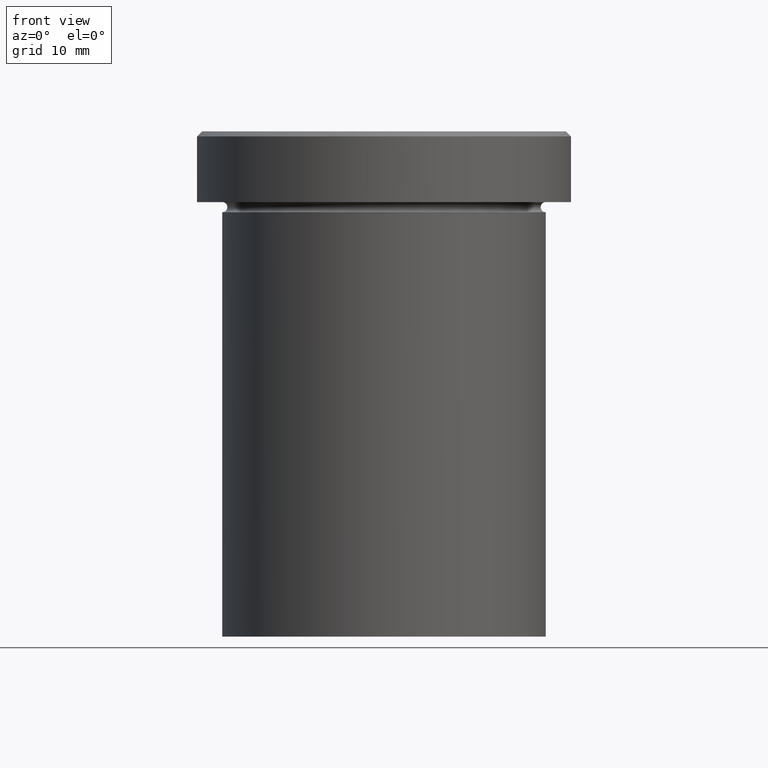
[diagram: clean part render]
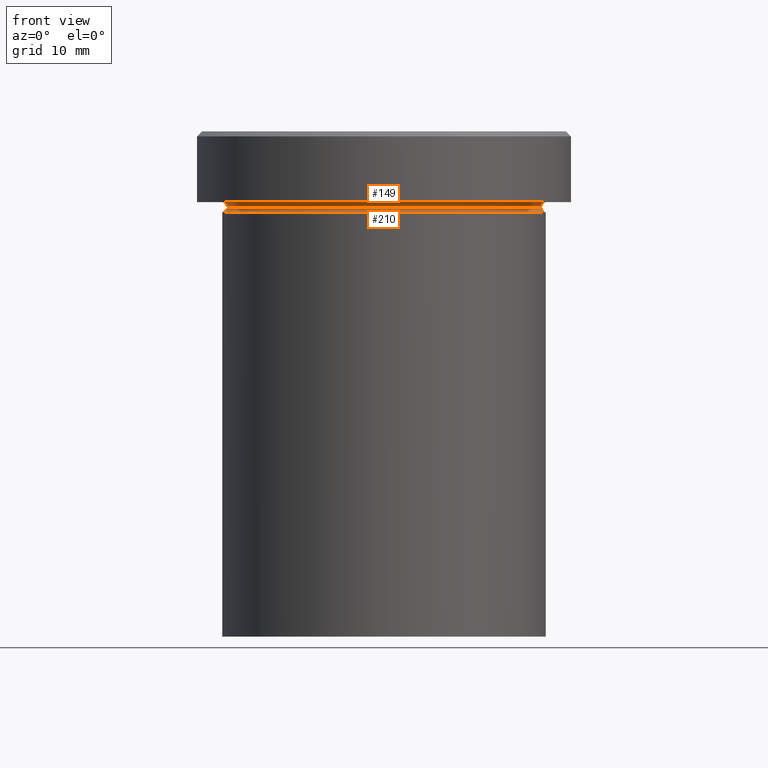
[diagram: same view with one multi-face feature highlighted, each face labeled with its STEP entity id]
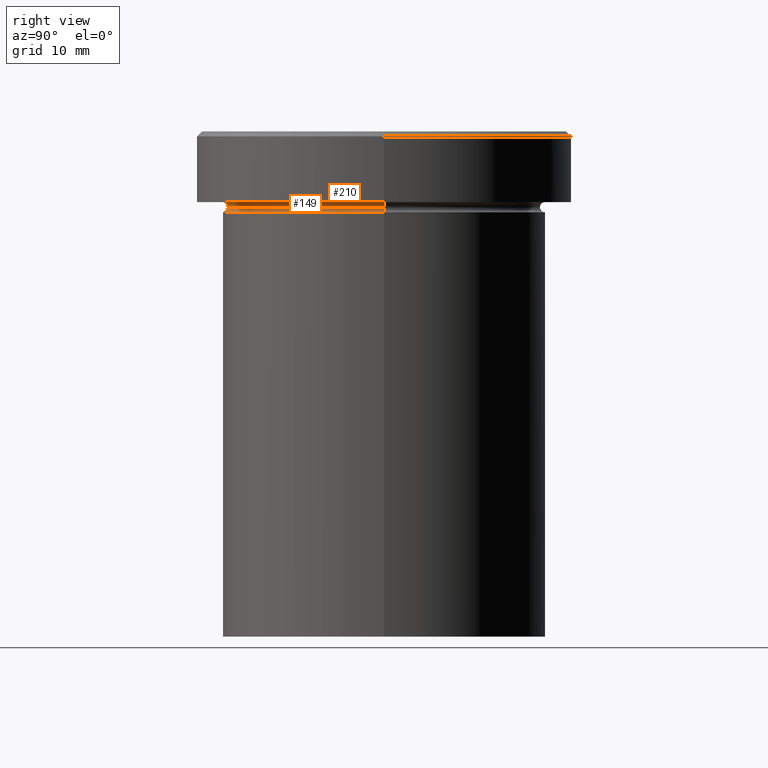
[diagram: same view with one multi-face feature highlighted, each face labeled with its STEP entity id]
A machine part, front view. The highlighted faces form ONE feature: a constant-radius fillet chain: 2 tangent blend faces with common blend radius 0.5 mm. The faces share edges in the B-rep.
A second angle (right view) of the same feature is appended — it is thin or edge-on in the first view.
Their STEP definitions:
[1] entity #210 (Torus):
#2 = CIRCLE ( 'NONE', #320, 0.5000000000000004441 ) ;
#8 = ORIENTED_EDGE ( 'NONE', *, *, #131, .F. ) ;
#9 = EDGE_LOOP ( 'NONE', ( #8, #111, #396, #192 ) ) ;
#26 = VERTEX_POINT ( 'NONE', #305 ) ;
#28 = FACE_OUTER_BOUND ( 'NONE', #9, .T. ) ;
#34 = CARTESIAN_POINT ( 'NONE',  ( -16.00000000000000000, 1.959434878635765131E-15, -7.500000000000000000 ) ) ;
#42 = CARTESIAN_POINT ( 'NONE',  ( 15.50000000000000000, 0.000000000000000000, -7.500000000000000000 ) ) ;
#46 = TOROIDAL_SURFACE ( 'NONE', #75, 16.00000000000000000, 0.5000000000000000000 ) ;
#55 = DIRECTION ( 'NONE',  ( 1.000000000000000000, 0.000000000000000000, 0.000000000000000000 ) ) ;
#59 = DIRECTION ( 'NONE',  ( -0.000000000000000000, -0.000000000000000000, 1.000000000000000000 ) ) ;
#64 = DIRECTION ( 'NONE',  ( 1.000000000000000000, 0.000000000000000000, 0.000000000000000000 ) ) ;
#66 = CIRCLE ( 'NONE', #291, 16.00000000000000000 ) ;
#75 = AXIS2_PLACEMENT_3D ( 'NONE', #103, #313, #64 ) ;
#78 = CARTESIAN_POINT ( 'NONE',  ( -16.00000000000000000, 1.959434878635765131E-15, -8.000000000000000000 ) ) ;
#103 = CARTESIAN_POINT ( 'NONE',  ( 0.000000000000000000, 0.000000000000000000, -7.500000000000000000 ) ) ;
#111 = ORIENTED_EDGE ( 'NONE', *, *, #224, .T. ) ;
#117 = DIRECTION ( 'NONE',  ( 0.000000000000000000, -1.000000000000000000, 0.000000000000000000 ) ) ;
#128 = CIRCLE ( 'NONE', #351, 15.50000000000000000 ) ;
#131 = EDGE_CURVE ( 'NONE', #384, #231, #128, .T. ) ;
#145 = CARTESIAN_POINT ( 'NONE',  ( 0.000000000000000000, 0.000000000000000000, -7.500000000000000000 ) ) ;
#176 = CARTESIAN_POINT ( 'NONE',  ( 16.00000000000000000, 0.000000000000000000, -7.500000000000000000 ) ) ;
#192 = ORIENTED_EDGE ( 'NONE', *, *, #281, .F. ) ;
#210 = ADVANCED_FACE ( 'NONE', ( #28 ), #46, .F. ) ;
#215 = AXIS2_PLACEMENT_3D ( 'NONE', #34, #343, #376 ) ;
#224 = EDGE_CURVE ( 'NONE', #384, #234, #272, .T. ) ;
#231 = VERTEX_POINT ( 'NONE', #42 ) ;
#234 = VERTEX_POINT ( 'NONE', #78 ) ;
#238 = DIRECTION ( 'NONE',  ( -0.000000000000000000, -0.000000000000000000, 1.000000000000000000 ) ) ;
#272 = CIRCLE ( 'NONE', #215, 0.5000000000000004441 ) ;
#281 = EDGE_CURVE ( 'NONE', #231, #26, #2, .T. ) ;
#291 = AXIS2_PLACEMENT_3D ( 'NONE', #311, #59, #361 ) ;
#305 = CARTESIAN_POINT ( 'NONE',  ( 16.00000000000000000, 0.000000000000000000, -8.000000000000000000 ) ) ;
#311 = CARTESIAN_POINT ( 'NONE',  ( 0.000000000000000000, 0.000000000000000000, -8.000000000000000000 ) ) ;
#313 = DIRECTION ( 'NONE',  ( -0.000000000000000000, -0.000000000000000000, 1.000000000000000000 ) ) ;
#315 = EDGE_CURVE ( 'NONE', #234, #26, #66, .T. ) ;
#320 = AXIS2_PLACEMENT_3D ( 'NONE', #176, #117, #393 ) ;
#343 = DIRECTION ( 'NONE',  ( 1.224646799147353207E-16, 1.000000000000000000, 0.000000000000000000 ) ) ;
#351 = AXIS2_PLACEMENT_3D ( 'NONE', #145, #238, #55 ) ;
#359 = CARTESIAN_POINT ( 'NONE',  ( -15.50000000000000000, 1.928818708657081344E-15, -7.500000000000000000 ) ) ;
#361 = DIRECTION ( 'NONE',  ( 1.000000000000000000, 0.000000000000000000, 0.000000000000000000 ) ) ;
#376 = DIRECTION ( 'NONE',  ( -1.000000000000000000, 1.224646799147349509E-16, 0.000000000000000000 ) ) ;
#384 = VERTEX_POINT ( 'NONE', #359 ) ;
#393 = DIRECTION ( 'NONE',  ( 0.000000000000000000, 0.000000000000000000, -1.000000000000000000 ) ) ;
#396 = ORIENTED_EDGE ( 'NONE', *, *, #315, .T. ) ;
[2] entity #149 (Torus):
#35 = AXIS2_PLACEMENT_3D ( 'NONE', #38, #133, #249 ) ;
#38 = CARTESIAN_POINT ( 'NONE',  ( 0.000000000000000000, 0.000000000000000000, -7.500000000000000000 ) ) ;
#42 = CARTESIAN_POINT ( 'NONE',  ( 15.50000000000000000, 0.000000000000000000, -7.500000000000000000 ) ) ;
#52 = AXIS2_PLACEMENT_3D ( 'NONE', #102, #161, #226 ) ;
#53 = CARTESIAN_POINT ( 'NONE',  ( 0.000000000000000000, 0.000000000000000000, -6.999999999999999112 ) ) ;
#55 = DIRECTION ( 'NONE',  ( 1.000000000000000000, 0.000000000000000000, 0.000000000000000000 ) ) ;
#61 = CARTESIAN_POINT ( 'NONE',  ( -16.00000000000000000, 0.000000000000000000, -7.500000000000000000 ) ) ;
#102 = CARTESIAN_POINT ( 'NONE',  ( 16.00000000000000000, 1.959434878635765131E-15, -7.500000000000000000 ) ) ;
#107 = VERTEX_POINT ( 'NONE', #331 ) ;
#128 = CIRCLE ( 'NONE', #351, 15.50000000000000000 ) ;
#131 = EDGE_CURVE ( 'NONE', #384, #231, #128, .T. ) ;
#133 = DIRECTION ( 'NONE',  ( 0.000000000000000000, 0.000000000000000000, -1.000000000000000000 ) ) ;
#144 = DIRECTION ( 'NONE',  ( -0.000000000000000000, -1.000000000000000000, -0.000000000000000000 ) ) ;
#145 = CARTESIAN_POINT ( 'NONE',  ( 0.000000000000000000, 0.000000000000000000, -7.500000000000000000 ) ) ;
#148 = CIRCLE ( 'NONE', #371, 0.5000000000000004441 ) ;
#149 = ADVANCED_FACE ( 'NONE', ( #390 ), #205, .F. ) ;
#159 = EDGE_CURVE ( 'NONE', #231, #107, #246, .T. ) ;
#161 = DIRECTION ( 'NONE',  ( -1.224646799147353207E-16, 1.000000000000000000, 0.000000000000000000 ) ) ;
#170 = EDGE_LOOP ( 'NONE', ( #362, #333, #352, #261 ) ) ;
#171 = AXIS2_PLACEMENT_3D ( 'NONE', #53, #274, #387 ) ;
#205 = TOROIDAL_SURFACE ( 'NONE', #35, 16.00000000000000000, 0.5000000000000000000 ) ;
#226 = DIRECTION ( 'NONE',  ( -1.000000000000000000, -1.224646799147349509E-16, 0.000000000000000000 ) ) ;
#231 = VERTEX_POINT ( 'NONE', #42 ) ;
#238 = DIRECTION ( 'NONE',  ( -0.000000000000000000, -0.000000000000000000, 1.000000000000000000 ) ) ;
#246 = CIRCLE ( 'NONE', #52, 0.5000000000000004441 ) ;
#249 = DIRECTION ( 'NONE',  ( -1.000000000000000000, 0.000000000000000000, 0.000000000000000000 ) ) ;
#261 = ORIENTED_EDGE ( 'NONE', *, *, #350, .F. ) ;
#266 = DIRECTION ( 'NONE',  ( 0.000000000000000000, 0.000000000000000000, -1.000000000000000000 ) ) ;
#274 = DIRECTION ( 'NONE',  ( -0.000000000000000000, -0.000000000000000000, 1.000000000000000000 ) ) ;
#296 = VERTEX_POINT ( 'NONE', #330 ) ;
#329 = CIRCLE ( 'NONE', #171, 16.00000000000000000 ) ;
#330 = CARTESIAN_POINT ( 'NONE',  ( -16.00000000000000000, 0.000000000000000000, -6.999999999999999112 ) ) ;
#331 = CARTESIAN_POINT ( 'NONE',  ( 16.00000000000000000, 1.959434878635765131E-15, -6.999999999999999112 ) ) ;
#333 = ORIENTED_EDGE ( 'NONE', *, *, #159, .T. ) ;
#350 = EDGE_CURVE ( 'NONE', #384, #296, #148, .T. ) ;
#351 = AXIS2_PLACEMENT_3D ( 'NONE', #145, #238, #55 ) ;
#352 = ORIENTED_EDGE ( 'NONE', *, *, #400, .F. ) ;
#359 = CARTESIAN_POINT ( 'NONE',  ( -15.50000000000000000, 1.928818708657081344E-15, -7.500000000000000000 ) ) ;
#362 = ORIENTED_EDGE ( 'NONE', *, *, #131, .T. ) ;
#371 = AXIS2_PLACEMENT_3D ( 'NONE', #61, #144, #266 ) ;
#384 = VERTEX_POINT ( 'NONE', #359 ) ;
#387 = DIRECTION ( 'NONE',  ( -1.000000000000000000, 0.000000000000000000, 0.000000000000000000 ) ) ;
#390 = FACE_OUTER_BOUND ( 'NONE', #170, .T. ) ;
#400 = EDGE_CURVE ( 'NONE', #296, #107, #329, .T. ) ;